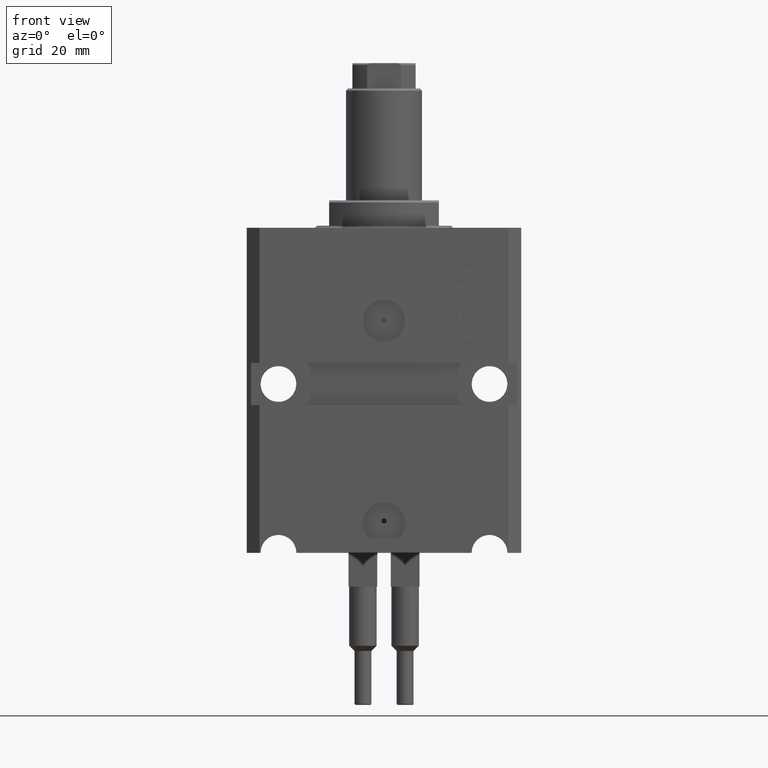
[diagram: clean part render]
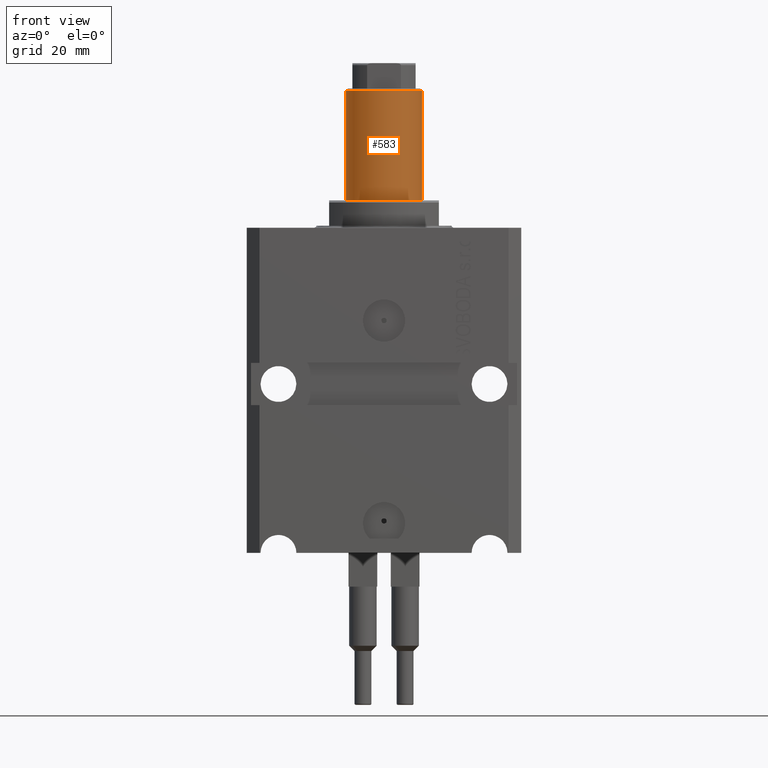
[diagram: same view with one face highlighted and labeled with its STEP entity id]
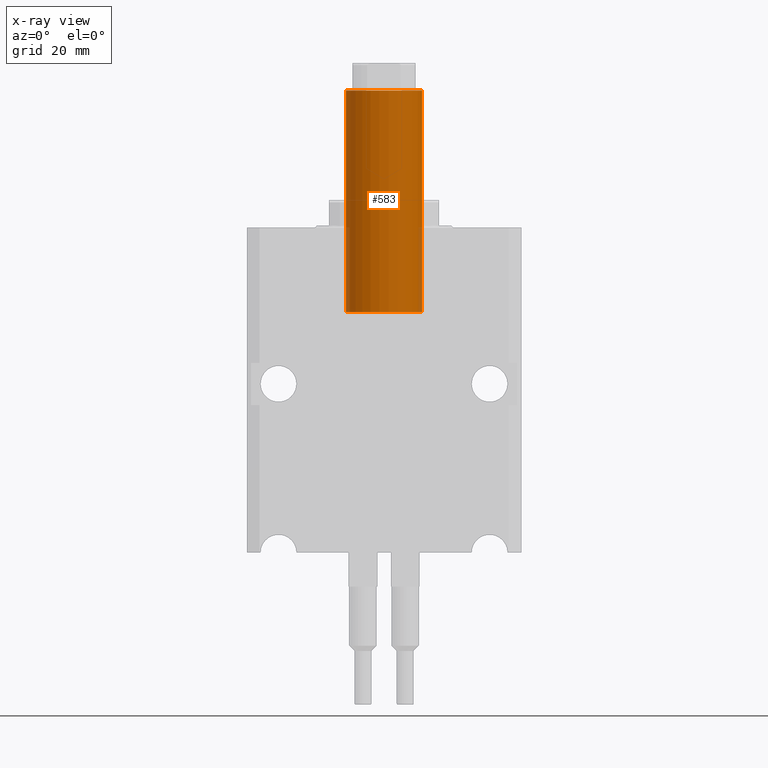
[diagram: x-ray of the same camera — body ghosted, the highlighted face saturated]
A machine part, front view. The second image highlights one B-rep face of the part: STEP entity #583.
The next image is the same camera in x-ray: the body ghosted, the highlighted face saturated — about 4% of this face is hidden behind the body in this view.
In plain terms, the highlighted cylindrical surface (partial cylindrical patch) has radius 9 mm, axis along (-0, -0, -1).
Its self-contained STEP definition (entity closure, byte-faithful):
#288 = CYLINDRICAL_SURFACE ( 'NONE', #10566, 9.000000000000000000 ) ;
#555 = DIRECTION ( 'NONE',  ( 1.000000000000000000, 0.000000000000000000, 0.000000000000000000 ) ) ;
#583 = ADVANCED_FACE ( 'NONE', ( #21128 ), #288, .T. ) ;
#2844 = ORIENTED_EDGE ( 'NONE', *, *, #43955, .T. ) ;
#3033 = VECTOR ( 'NONE', #39411, 1000.000000000000000 ) ;
#3186 = VERTEX_POINT ( 'NONE', #10018 ) ;
#3512 = VERTEX_POINT ( 'NONE', #44733 ) ;
#4004 = CARTESIAN_POINT ( 'NONE',  ( 0.000000000000000000, 0.000000000000000000, 77.49999999999998579 ) ) ;
#4012 = AXIS2_PLACEMENT_3D ( 'NONE', #4004, #11086, #555 ) ;
#5475 = CARTESIAN_POINT ( 'NONE',  ( 9.000000000000000000, 1.102182119232617714E-15, 78.00000000000000000 ) ) ;
#6321 = CARTESIAN_POINT ( 'NONE',  ( -9.000000000000000000, 0.000000000000000000, 77.49999999999998579 ) ) ;
#7611 = LINE ( 'NONE', #17671, #13489 ) ;
#10018 = CARTESIAN_POINT ( 'NONE',  ( 9.000000000000000000, 1.102182119232617714E-15, 77.49999999999998579 ) ) ;
#10566 = AXIS2_PLACEMENT_3D ( 'NONE', #21357, #38095, #31218 ) ;
#11086 = DIRECTION ( 'NONE',  ( 0.000000000000000000, 0.000000000000000000, -1.000000000000000000 ) ) ;
#12960 = DIRECTION ( 'NONE',  ( 1.000000000000000000, 0.000000000000000000, 0.000000000000000000 ) ) ;
#13489 = VECTOR ( 'NONE', #21571, 1000.000000000000000 ) ;
#13817 = ORIENTED_EDGE ( 'NONE', *, *, #24452, .F. ) ;
#17671 = CARTESIAN_POINT ( 'NONE',  ( -9.000000000000000000, 0.000000000000000000, 78.00000000000000000 ) ) ;
#18618 = CIRCLE ( 'NONE', #4012, 9.000000000000000000 ) ;
#21128 = FACE_OUTER_BOUND ( 'NONE', #40220, .T. ) ;
#21357 = CARTESIAN_POINT ( 'NONE',  ( 0.000000000000000000, 0.000000000000000000, 78.00000000000000000 ) ) ;
#21571 = DIRECTION ( 'NONE',  ( -0.000000000000000000, -0.000000000000000000, -1.000000000000000000 ) ) ;
#22071 = VERTEX_POINT ( 'NONE', #38822 ) ;
#22370 = CARTESIAN_POINT ( 'NONE',  ( 0.000000000000000000, 0.000000000000000000, 25.00000000000000000 ) ) ;
#24452 = EDGE_CURVE ( 'NONE', #3186, #22071, #39632, .T. ) ;
#25221 = ORIENTED_EDGE ( 'NONE', *, *, #39022, .T. ) ;
#30570 = ORIENTED_EDGE ( 'NONE', *, *, #44823, .T. ) ;
#31218 = DIRECTION ( 'NONE',  ( -1.000000000000000000, 0.000000000000000000, 0.000000000000000000 ) ) ;
#31621 = CIRCLE ( 'NONE', #43344, 9.000000000000000000 ) ;
#33587 = DIRECTION ( 'NONE',  ( 0.000000000000000000, 0.000000000000000000, 1.000000000000000000 ) ) ;
#38095 = DIRECTION ( 'NONE',  ( -0.000000000000000000, -0.000000000000000000, -1.000000000000000000 ) ) ;
#38822 = CARTESIAN_POINT ( 'NONE',  ( 9.000000000000000000, 1.102182119232617714E-15, 25.00000000000000000 ) ) ;
#39022 = EDGE_CURVE ( 'NONE', #3512, #22071, #31621, .T. ) ;
#39411 = DIRECTION ( 'NONE',  ( -0.000000000000000000, -0.000000000000000000, -1.000000000000000000 ) ) ;
#39632 = LINE ( 'NONE', #5475, #3033 ) ;
#40220 = EDGE_LOOP ( 'NONE', ( #13817, #2844, #30570, #25221 ) ) ;
#42527 = VERTEX_POINT ( 'NONE', #6321 ) ;
#43344 = AXIS2_PLACEMENT_3D ( 'NONE', #22370, #33587, #12960 ) ;
#43955 = EDGE_CURVE ( 'NONE', #3186, #42527, #18618, .T. ) ;
#44733 = CARTESIAN_POINT ( 'NONE',  ( -9.000000000000000000, 0.000000000000000000, 25.00000000000000000 ) ) ;
#44823 = EDGE_CURVE ( 'NONE', #42527, #3512, #7611, .T. ) ;